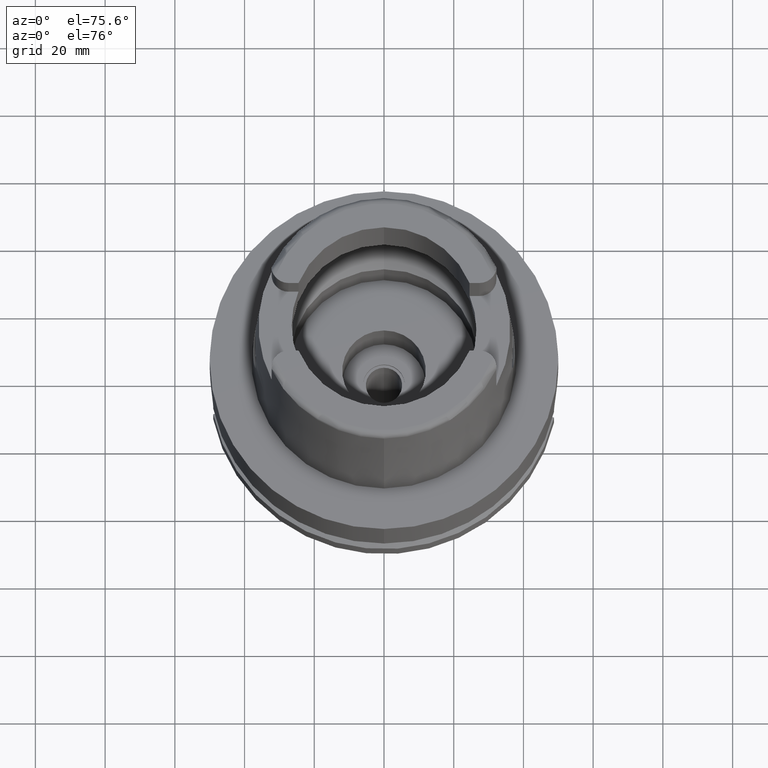
[diagram: clean part render]
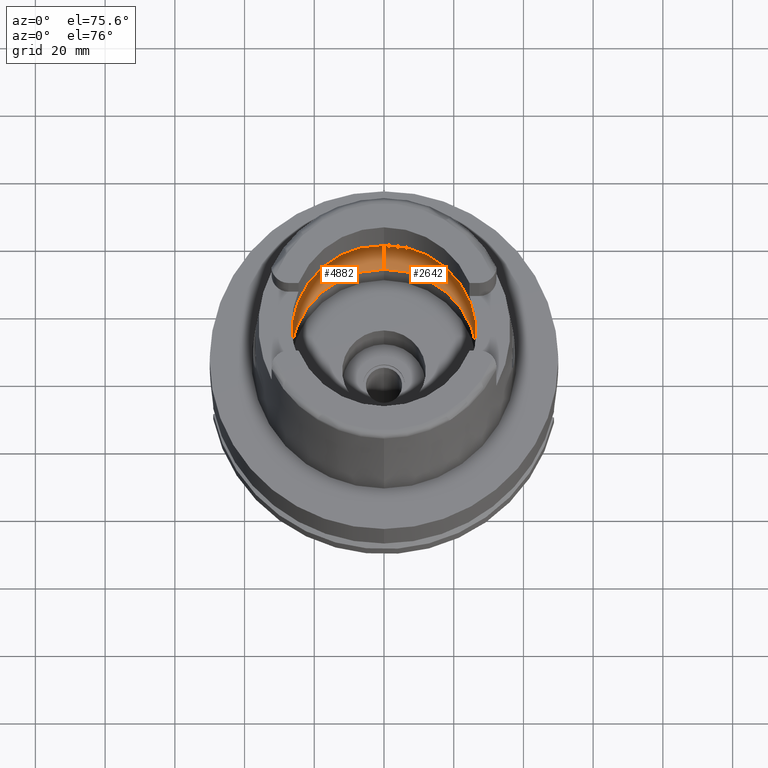
[diagram: same view with one multi-face feature highlighted, each face labeled with its STEP entity id]
A machine part, auxiliary view. The highlighted faces form ONE feature: a constant-radius fillet chain: 2 tangent blend faces with common blend radius 12 mm. The faces share edges in the B-rep.
Their STEP definitions:
[1] entity #2642 (Torus):
#108 = DIRECTION ( 'NONE',  ( 0.0000000000000000000, -1.000000000000000000, 0.0000000000000000000 ) ) ;
#187 = ORIENTED_EDGE ( 'NONE', *, *, #3740, .F. ) ;
#284 = EDGE_LOOP ( 'NONE', ( #1030, #522, #3369, #3900, #3445, #187, #749 ) ) ;
#477 = DIRECTION ( 'NONE',  ( 0.0000000000000000000, 0.0000000000000000000, 1.000000000000000000 ) ) ;
#522 = ORIENTED_EDGE ( 'NONE', *, *, #778, .F. ) ;
#749 = ORIENTED_EDGE ( 'NONE', *, *, #2290, .F. ) ;
#778 = EDGE_CURVE ( 'NONE', #5175, #5480, #4006, .T. ) ;
#893 = AXIS2_PLACEMENT_3D ( 'NONE', #3334, #1195, #108 ) ;
#904 = DIRECTION ( 'NONE',  ( -1.000000000000000000, 0.0000000000000000000, 0.0000000000000000000 ) ) ;
#1030 = ORIENTED_EDGE ( 'NONE', *, *, #5328, .F. ) ;
#1057 = AXIS2_PLACEMENT_3D ( 'NONE', #1354, #477, #1799 ) ;
#1195 = DIRECTION ( 'NONE',  ( 0.0000000000000000000, 0.0000000000000000000, 1.000000000000000000 ) ) ;
#1234 = CARTESIAN_POINT ( 'NONE',  ( 0.0000000000000000000, 0.0000000000000000000, 9.496624327025999790 ) ) ;
#1263 = VERTEX_POINT ( 'NONE', #4767 ) ;
#1266 = DIRECTION ( 'NONE',  ( 0.0000000000000000000, 0.0000000000000000000, -1.000000000000000000 ) ) ;
#1288 = EDGE_CURVE ( 'NONE', #1263, #1978, #2756, .T. ) ;
#1354 = CARTESIAN_POINT ( 'NONE',  ( 0.0000000000000000000, 0.0000000000000000000, 9.496624327025999790 ) ) ;
#1727 = VERTEX_POINT ( 'NONE', #3849 ) ;
#1799 = DIRECTION ( 'NONE',  ( 0.0000000000000000000, 1.000000000000000000, 0.0000000000000000000 ) ) ;
#1816 = CARTESIAN_POINT ( 'NONE',  ( 31.48971910754000447, 0.0000000000000000000, 9.000000000000000000 ) ) ;
#1872 = DIRECTION ( 'NONE',  ( 0.0000000000000000000, -0.6166666666667049990, -0.7872243785746061429 ) ) ;
#1959 = DIRECTION ( 'NONE',  ( 1.000000000000000000, 0.0000000000000000000, 0.0000000000000000000 ) ) ;
#1978 = VERTEX_POINT ( 'NONE', #3131 ) ;
#2077 = B_SPLINE_CURVE_WITH_KNOTS ( 'NONE', 3,
 ( #2328, #2785, #2752, #4509 ),
 .UNSPECIFIED., .F., .F.,
 ( 4, 4 ),
 ( 0.0000000000000000000, 1.000000000000000000 ),
 .UNSPECIFIED. ) ;
#2290 = EDGE_CURVE ( 'NONE', #1727, #2850, #5494, .T. ) ;
#2328 = CARTESIAN_POINT ( 'NONE',  ( 31.40918884336000616, 2.390158196043999705, 9.496624327025999790 ) ) ;
#2413 = AXIS2_PLACEMENT_3D ( 'NONE', #3452, #1266, #3401 ) ;
#2466 = CARTESIAN_POINT ( 'NONE',  ( 0.0000000000000000000, 31.50000000000000000, 9.496624327025999790 ) ) ;
#2485 = DIRECTION ( 'NONE',  ( 0.0000000000000000000, 0.6166666666667049990, -0.7872243785746061429 ) ) ;
#2503 = CIRCLE ( 'NONE', #5032, 11.99999999999999822 ) ;
#2642 = ADVANCED_FACE ( 'NONE', ( #2707 ), #3484, .F. ) ;
#2707 = FACE_OUTER_BOUND ( 'NONE', #284, .T. ) ;
#2714 = CARTESIAN_POINT ( 'NONE',  ( 0.0000000000000000000, 26.89999999999999858, 0.04993178413037000635 ) ) ;
#2752 = CARTESIAN_POINT ( 'NONE',  ( 31.48971910753999026, 0.8697454017787721314, 9.000000000000001776 ) ) ;
#2756 = CIRCLE ( 'NONE', #4741, 11.99999999999999822 ) ;
#2785 = CARTESIAN_POINT ( 'NONE',  ( 31.46287568614665986, 1.684656700008886121, 9.190219625026216477 ) ) ;
#2850 = VERTEX_POINT ( 'NONE', #3810 ) ;
#2909 = EDGE_CURVE ( 'NONE', #1263, #3173, #4020, .T. ) ;
#3131 = CARTESIAN_POINT ( 'NONE',  ( 0.0000000000000000000, -31.50000000000000000, 9.496624327025999790 ) ) ;
#3173 = VERTEX_POINT ( 'NONE', #2714 ) ;
#3312 = CIRCLE ( 'NONE', #2413, 31.49999999999998934 ) ;
#3334 = CARTESIAN_POINT ( 'NONE',  ( 0.0000000000000000000, 0.0000000000000000000, 0.04993178413037000635 ) ) ;
#3340 = DIRECTION ( 'NONE',  ( 0.0000000000000000000, 0.0000000000000000000, -1.000000000000000000 ) ) ;
#3369 = ORIENTED_EDGE ( 'NONE', *, *, #3843, .F. ) ;
#3401 = DIRECTION ( 'NONE',  ( 0.9971171061384295209, -0.07587803796965221503, 0.0000000000000000000 ) ) ;
#3445 = ORIENTED_EDGE ( 'NONE', *, *, #1288, .T. ) ;
#3452 = CARTESIAN_POINT ( 'NONE',  ( 0.0000000000000000000, 0.0000000000000000000, 9.496624327025999790 ) ) ;
#3484 = TOROIDAL_SURFACE ( 'NONE', #1057, 19.50000000000000000, 12.00000000000000000 ) ;
#3737 = AXIS2_PLACEMENT_3D ( 'NONE', #1234, #3340, #3820 ) ;
#3740 = EDGE_CURVE ( 'NONE', #2850, #1978, #3312, .T. ) ;
#3810 = CARTESIAN_POINT ( 'NONE',  ( 31.40918884336000616, -2.390158196043999705, 9.496624327025999790 ) ) ;
#3820 = DIRECTION ( 'NONE',  ( 0.0000000000000000000, 1.000000000000000000, 0.0000000000000000000 ) ) ;
#3843 = EDGE_CURVE ( 'NONE', #3173, #5175, #2503, .T. ) ;
#3849 = CARTESIAN_POINT ( 'NONE',  ( 31.48971910754000447, 0.0000000000000000000, 9.000000000000000000 ) ) ;
#3900 = ORIENTED_EDGE ( 'NONE', *, *, #2909, .F. ) ;
#3993 = CARTESIAN_POINT ( 'NONE',  ( 31.46287568614665986, -1.684656699965325632, 9.190219625007294724 ) ) ;
#4006 = CIRCLE ( 'NONE', #3737, 31.50000000000000000 ) ;
#4020 = CIRCLE ( 'NONE', #893, 26.89999999999999858 ) ;
#4372 = CARTESIAN_POINT ( 'NONE',  ( 0.0000000000000000000, -19.50000000000000000, 9.496624327025999790 ) ) ;
#4453 = CARTESIAN_POINT ( 'NONE',  ( 31.48971910753999026, -0.8697454017312684638, 8.999999999999998224 ) ) ;
#4509 = CARTESIAN_POINT ( 'NONE',  ( 31.48971910754000447, 0.0000000000000000000, 9.000000000000000000 ) ) ;
#4741 = AXIS2_PLACEMENT_3D ( 'NONE', #4372, #904, #1872 ) ;
#4767 = CARTESIAN_POINT ( 'NONE',  ( 0.0000000000000000000, -26.89999999999999858, 0.04993178413037000635 ) ) ;
#5001 = CARTESIAN_POINT ( 'NONE',  ( 0.0000000000000000000, 19.50000000000000000, 9.496624327025999790 ) ) ;
#5032 = AXIS2_PLACEMENT_3D ( 'NONE', #5001, #1959, #2485 ) ;
#5175 = VERTEX_POINT ( 'NONE', #2466 ) ;
#5211 = CARTESIAN_POINT ( 'NONE',  ( 31.40918884336000616, -2.390158196043999705, 9.496624327025999790 ) ) ;
#5328 = EDGE_CURVE ( 'NONE', #5480, #1727, #2077, .T. ) ;
#5480 = VERTEX_POINT ( 'NONE', #5500 ) ;
#5494 = B_SPLINE_CURVE_WITH_KNOTS ( 'NONE', 3,
 ( #1816, #4453, #3993, #5211 ),
 .UNSPECIFIED., .F., .F.,
 ( 4, 4 ),
 ( 0.0000000000000000000, 1.000000000000000000 ),
 .UNSPECIFIED. ) ;
#5500 = CARTESIAN_POINT ( 'NONE',  ( 31.40918884336000616, 2.390158196043999705, 9.496624327025999790 ) ) ;
[2] entity #4882 (Torus):
#61 = DIRECTION ( 'NONE',  ( 0.0000000000000000000, 1.000000000000000000, 0.0000000000000000000 ) ) ;
#125 = CARTESIAN_POINT ( 'NONE',  ( -31.48971910754000447, 0.0000000000000000000, 9.000000000000000000 ) ) ;
#155 = EDGE_CURVE ( 'NONE', #5169, #3365, #3200, .T. ) ;
#231 = AXIS2_PLACEMENT_3D ( 'NONE', #4458, #934, #2709 ) ;
#270 = DIRECTION ( 'NONE',  ( 0.0000000000000000000, 0.0000000000000000000, -1.000000000000000000 ) ) ;
#336 = AXIS2_PLACEMENT_3D ( 'NONE', #673, #270, #5483 ) ;
#582 = CARTESIAN_POINT ( 'NONE',  ( -31.46287568614665986, -1.684656700029165899, 9.190219625035021878 ) ) ;
#673 = CARTESIAN_POINT ( 'NONE',  ( 0.0000000000000000000, 0.0000000000000000000, 9.496624327025999790 ) ) ;
#704 = AXIS2_PLACEMENT_3D ( 'NONE', #5574, #2148, #1694 ) ;
#779 = ORIENTED_EDGE ( 'NONE', *, *, #155, .F. ) ;
#789 = DIRECTION ( 'NONE',  ( 0.0000000000000000000, 0.0000000000000000000, 1.000000000000000000 ) ) ;
#904 = DIRECTION ( 'NONE',  ( -1.000000000000000000, 0.0000000000000000000, 0.0000000000000000000 ) ) ;
#934 = DIRECTION ( 'NONE',  ( 0.0000000000000000000, 0.0000000000000000000, -1.000000000000000000 ) ) ;
#966 = CIRCLE ( 'NONE', #1326, 26.89999999999999858 ) ;
#1053 = CIRCLE ( 'NONE', #231, 31.49999999999998934 ) ;
#1263 = VERTEX_POINT ( 'NONE', #4767 ) ;
#1288 = EDGE_CURVE ( 'NONE', #1263, #1978, #2756, .T. ) ;
#1299 = EDGE_LOOP ( 'NONE', ( #2859, #1953, #1453, #2076, #4838, #2037, #779 ) ) ;
#1326 = AXIS2_PLACEMENT_3D ( 'NONE', #3775, #789, #61 ) ;
#1337 = TOROIDAL_SURFACE ( 'NONE', #704, 19.50000000000000000, 12.00000000000000000 ) ;
#1453 = ORIENTED_EDGE ( 'NONE', *, *, #5152, .F. ) ;
#1540 = VERTEX_POINT ( 'NONE', #3251 ) ;
#1694 = DIRECTION ( 'NONE',  ( 0.0000000000000000000, 1.000000000000000000, 0.0000000000000000000 ) ) ;
#1872 = DIRECTION ( 'NONE',  ( 0.0000000000000000000, -0.6166666666667049990, -0.7872243785746061429 ) ) ;
#1953 = ORIENTED_EDGE ( 'NONE', *, *, #1288, .F. ) ;
#1959 = DIRECTION ( 'NONE',  ( 1.000000000000000000, 0.0000000000000000000, 0.0000000000000000000 ) ) ;
#1967 = CARTESIAN_POINT ( 'NONE',  ( -31.40918884336000616, -2.390158196043999705, 9.496624327025999790 ) ) ;
#1978 = VERTEX_POINT ( 'NONE', #3131 ) ;
#1980 = EDGE_CURVE ( 'NONE', #1540, #5175, #1053, .T. ) ;
#2037 = ORIENTED_EDGE ( 'NONE', *, *, #4539, .F. ) ;
#2076 = ORIENTED_EDGE ( 'NONE', *, *, #3843, .T. ) ;
#2148 = DIRECTION ( 'NONE',  ( 0.0000000000000000000, 0.0000000000000000000, 1.000000000000000000 ) ) ;
#2169 = CARTESIAN_POINT ( 'NONE',  ( -31.48971910754000447, 0.0000000000000000000, 9.000000000000000000 ) ) ;
#2466 = CARTESIAN_POINT ( 'NONE',  ( 0.0000000000000000000, 31.50000000000000000, 9.496624327025999790 ) ) ;
#2485 = DIRECTION ( 'NONE',  ( 0.0000000000000000000, 0.6166666666667049990, -0.7872243785746061429 ) ) ;
#2502 = CARTESIAN_POINT ( 'NONE',  ( -31.40918884336000616, -2.390158196043999705, 9.496624327025999790 ) ) ;
#2503 = CIRCLE ( 'NONE', #5032, 11.99999999999999822 ) ;
#2709 = DIRECTION ( 'NONE',  ( -0.9971171061384295209, 0.07587803796965221503, 0.0000000000000000000 ) ) ;
#2714 = CARTESIAN_POINT ( 'NONE',  ( 0.0000000000000000000, 26.89999999999999858, 0.04993178413037000635 ) ) ;
#2756 = CIRCLE ( 'NONE', #4741, 11.99999999999999822 ) ;
#2859 = ORIENTED_EDGE ( 'NONE', *, *, #4976, .F. ) ;
#3131 = CARTESIAN_POINT ( 'NONE',  ( 0.0000000000000000000, -31.50000000000000000, 9.496624327025999790 ) ) ;
#3139 = CARTESIAN_POINT ( 'NONE',  ( -31.46287568614665986, 1.684656699916923683, 9.190219624986275093 ) ) ;
#3173 = VERTEX_POINT ( 'NONE', #2714 ) ;
#3200 = B_SPLINE_CURVE_WITH_KNOTS ( 'NONE', 3,
 ( #1967, #582, #4541, #3611 ),
 .UNSPECIFIED., .F., .F.,
 ( 4, 4 ),
 ( 0.0000000000000000000, 1.000000000000000000 ),
 .UNSPECIFIED. ) ;
#3251 = CARTESIAN_POINT ( 'NONE',  ( -31.40918884336000616, 2.390158196043999705, 9.496624327025999790 ) ) ;
#3365 = VERTEX_POINT ( 'NONE', #2169 ) ;
#3595 = CARTESIAN_POINT ( 'NONE',  ( -31.40918884336000616, 2.390158196043999705, 9.496624327025999790 ) ) ;
#3611 = CARTESIAN_POINT ( 'NONE',  ( -31.48971910754000447, 0.0000000000000000000, 9.000000000000000000 ) ) ;
#3775 = CARTESIAN_POINT ( 'NONE',  ( 0.0000000000000000000, 0.0000000000000000000, 0.04993178413037000635 ) ) ;
#3837 = FACE_OUTER_BOUND ( 'NONE', #1299, .T. ) ;
#3843 = EDGE_CURVE ( 'NONE', #3173, #5175, #2503, .T. ) ;
#3999 = CARTESIAN_POINT ( 'NONE',  ( -31.48971910754000447, 0.8697454016785111097, 9.000000000000001776 ) ) ;
#4136 = B_SPLINE_CURVE_WITH_KNOTS ( 'NONE', 3,
 ( #125, #3999, #3139, #3595 ),
 .UNSPECIFIED., .F., .F.,
 ( 4, 4 ),
 ( 0.0000000000000000000, 1.000000000000000000 ),
 .UNSPECIFIED. ) ;
#4372 = CARTESIAN_POINT ( 'NONE',  ( 0.0000000000000000000, -19.50000000000000000, 9.496624327025999790 ) ) ;
#4458 = CARTESIAN_POINT ( 'NONE',  ( 0.0000000000000000000, 0.0000000000000000000, 9.496624327025999790 ) ) ;
#4539 = EDGE_CURVE ( 'NONE', #3365, #1540, #4136, .T. ) ;
#4541 = CARTESIAN_POINT ( 'NONE',  ( -31.48971910754000447, -0.8697454018008697885, 8.999999999999998224 ) ) ;
#4741 = AXIS2_PLACEMENT_3D ( 'NONE', #4372, #904, #1872 ) ;
#4767 = CARTESIAN_POINT ( 'NONE',  ( 0.0000000000000000000, -26.89999999999999858, 0.04993178413037000635 ) ) ;
#4838 = ORIENTED_EDGE ( 'NONE', *, *, #1980, .F. ) ;
#4882 = ADVANCED_FACE ( 'NONE', ( #3837 ), #1337, .F. ) ;
#4976 = EDGE_CURVE ( 'NONE', #1978, #5169, #5118, .T. ) ;
#5001 = CARTESIAN_POINT ( 'NONE',  ( 0.0000000000000000000, 19.50000000000000000, 9.496624327025999790 ) ) ;
#5032 = AXIS2_PLACEMENT_3D ( 'NONE', #5001, #1959, #2485 ) ;
#5118 = CIRCLE ( 'NONE', #336, 31.50000000000000000 ) ;
#5152 = EDGE_CURVE ( 'NONE', #3173, #1263, #966, .T. ) ;
#5169 = VERTEX_POINT ( 'NONE', #2502 ) ;
#5175 = VERTEX_POINT ( 'NONE', #2466 ) ;
#5483 = DIRECTION ( 'NONE',  ( 0.0000000000000000000, -1.000000000000000000, 0.0000000000000000000 ) ) ;
#5574 = CARTESIAN_POINT ( 'NONE',  ( 0.0000000000000000000, 0.0000000000000000000, 9.496624327025999790 ) ) ;